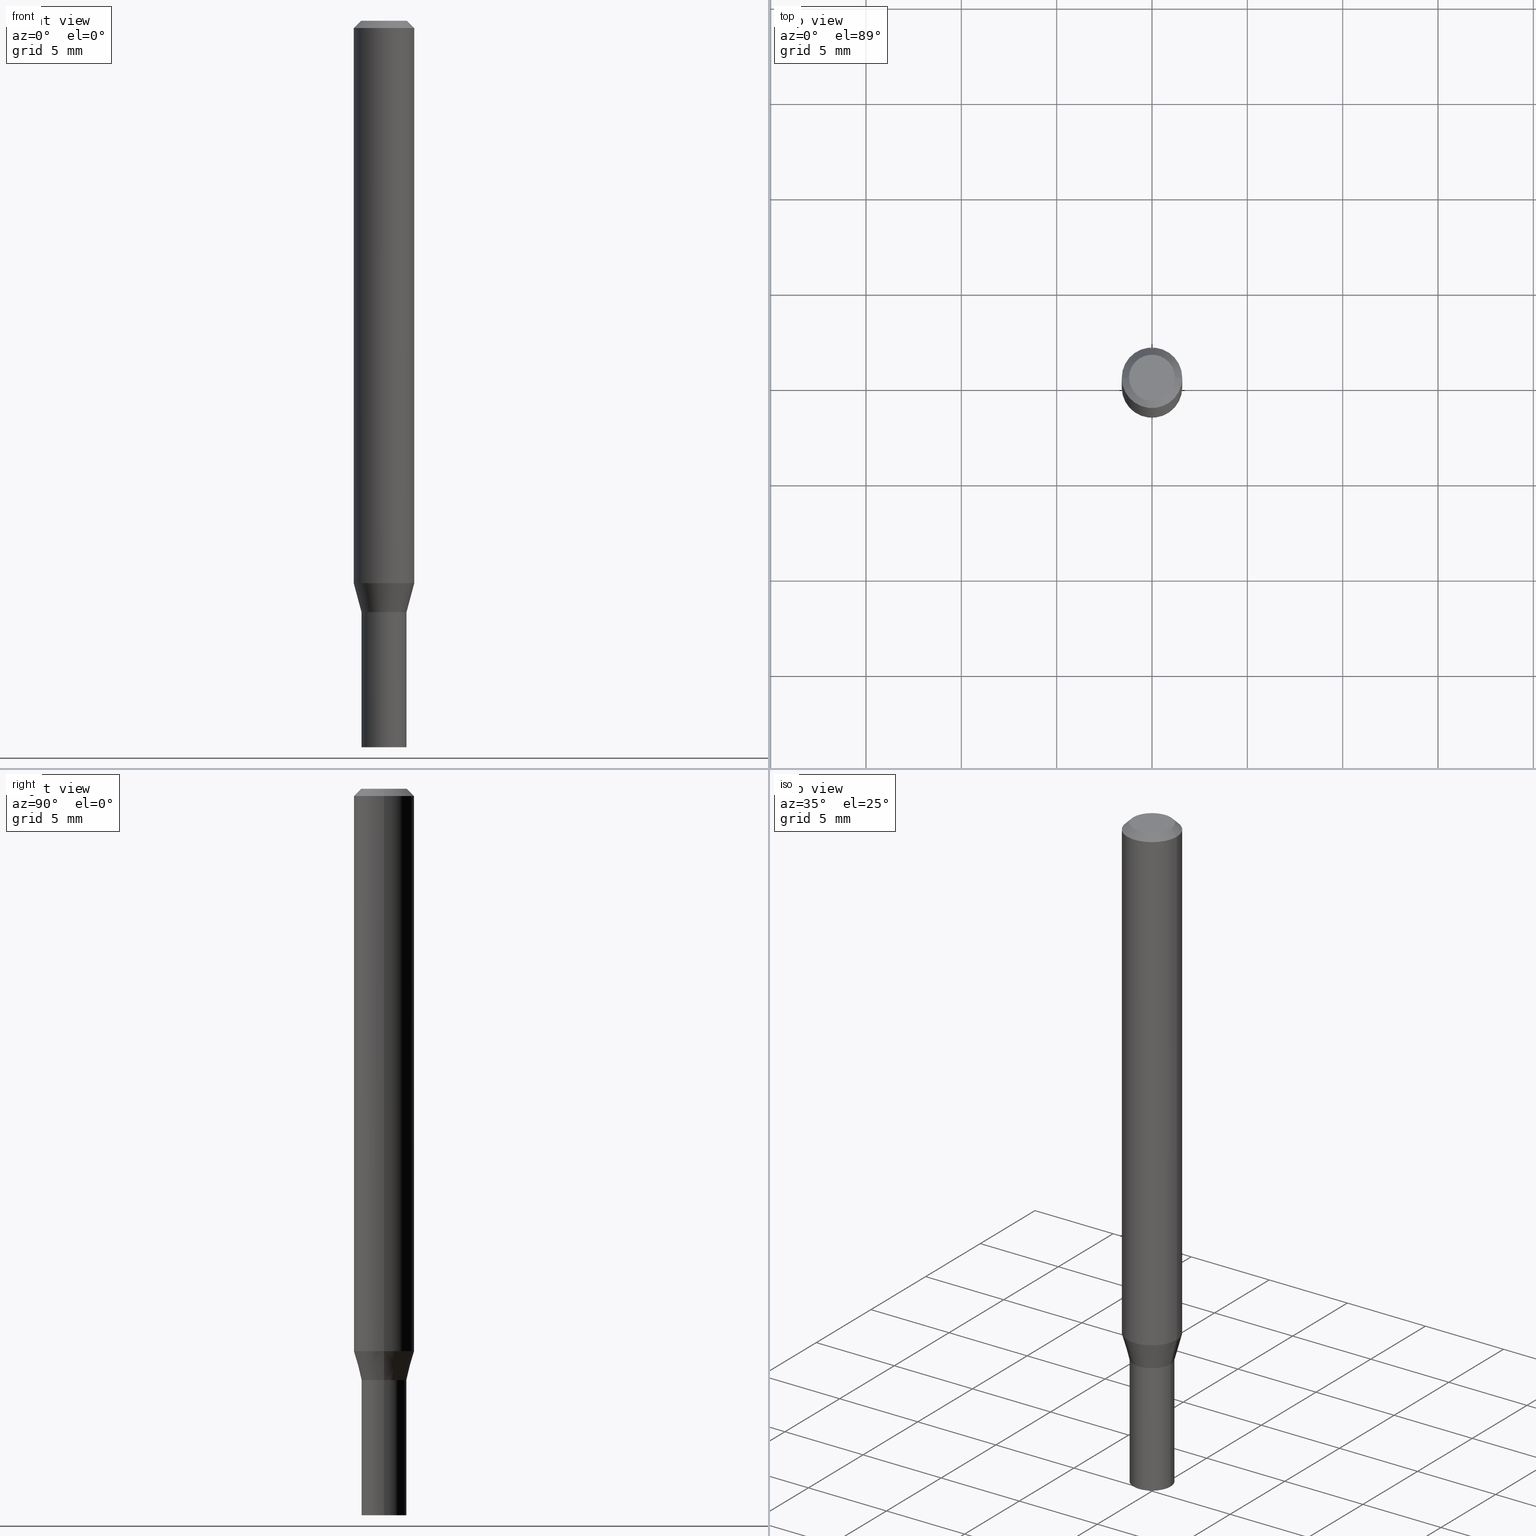
[diagram: canonical four-view strip — front | top / right | iso, engineering-drawing reading convention]
A machine part, canonical four-view strip (front | top / right | iso — engineering-drawing reading convention). The complete STEP part file that produces these views, byte-faithful:
ISO-10303-21;
HEADER;
FILE_DESCRIPTION (( 'STEP AP203' ),
    '1' );
FILE_NAME ('04175.STEP',
    '2024-03-14T17:11:52',
    ( '' ),
    ( '' ),
    'SwSTEP 2.0',
    'SolidWorks 2023',
    '' );
FILE_SCHEMA (( 'CONFIG_CONTROL_DESIGN' ));
ENDSEC;

DATA;
#1 = CARTESIAN_POINT ( 'NONE',  ( -0.04649999999999999967, -4.419757989367653263E-15, -1.221000000000000085 ) ) ;
#2 = CONICAL_SURFACE ( 'NONE', #271, 0.04599999999999999922, 0.7853981633974739252 ) ;
#3 = DIRECTION ( 'NONE',  ( 2.438088387897960049E-29, -3.491481338843145188E-15, -1.000000000000000000 ) ) ;
#4 = LINE ( 'NONE', #150, #80 ) ;
#5 = APPROVAL ( #427, 'UNSPECIFIED' ) ;
#6 = CARTESIAN_POINT ( 'NONE',  ( 0.04749999999999999362, -4.035134999187577144E-16, 8.673617379885194112E-17 ) ) ;
#7 = VECTOR ( 'NONE', #106, 39.37007874015748854 ) ;
#8 = LOCAL_TIME ( 13, 11, 52.00000000000000000, #355 ) ;
#9 = DIRECTION ( 'NONE',  ( 2.445468806185136597E-29, -3.491481338843145583E-15, -1.000000000000000000 ) ) ;
#10 = EDGE_CURVE ( 'NONE', #413, #155, #449, .T. ) ;
#11 = APPROVAL ( #358, 'UNSPECIFIED' ) ;
#12 =( NAMED_UNIT ( * ) SI_UNIT ( $, .STERADIAN. ) SOLID_ANGLE_UNIT ( ) );
#13 = VERTEX_POINT ( 'NONE', #205 ) ;
#14 = DIRECTION ( 'NONE',  ( 0.000000000000000000, 0.000000000000000000, 1.000000000000000000 ) ) ;
#15 = ORIENTED_EDGE ( 'NONE', *, *, #377, .F. ) ;
#16 = AXIS2_PLACEMENT_3D ( 'NONE', #451, #19, #422 ) ;
#17 = FACE_OUTER_BOUND ( 'NONE', #47, .T. ) ;
#18 = DIRECTION ( 'NONE',  ( -2.445468806185136597E-29, 3.491481338843145583E-15, 1.000000000000000000 ) ) ;
#19 = DIRECTION ( 'NONE',  ( -2.445468806185136597E-29, 3.491481338843145583E-15, 1.000000000000000000 ) ) ;
#20 = ORIENTED_EDGE ( 'NONE', *, *, #464, .T. ) ;
#21 = CYLINDRICAL_SURFACE ( 'NONE', #313, 0.06250000000000000000 ) ;
#22 = ORIENTED_EDGE ( 'NONE', *, *, #85, .T. ) ;
#23 = APPLICATION_CONTEXT ( 'configuration controlled 3d designs of mechanical parts and assemblies' ) ;
#24 = EDGE_LOOP ( 'NONE', ( #60, #62, #379, #93 ) ) ;
#25 = DATE_AND_TIME ( #352, #162 ) ;
#26 = DIRECTION ( 'NONE',  ( 1.000000000000000000, -6.982962677686269077E-15, 0.000000000000000000 ) ) ;
#27 = APPLICATION_PROTOCOL_DEFINITION ( 'international standard', 'config_control_design', 1994, #405 ) ;
#28 = FACE_OUTER_BOUND ( 'NONE', #274, .T. ) ;
#29 = AXIS2_PLACEMENT_3D ( 'NONE', #234, #78, #362 ) ;
#30 = SECURITY_CLASSIFICATION_LEVEL ( 'unclassified' ) ;
#31 = DIRECTION ( 'NONE',  ( 1.000000000000000000, -6.982962677686266711E-15, 4.876176775795935793E-29 ) ) ;
#32 = EDGE_CURVE ( 'NONE', #344, #452, #193, .T. ) ;
#33 = CALENDAR_DATE ( 2024, 14, 3 ) ;
#34 = CARTESIAN_POINT ( 'NONE',  ( 0.06250000000000000000, -4.811533449433679005E-16, -0.01499999999999999944 ) ) ;
#35 = FACE_OUTER_BOUND ( 'NONE', #192, .T. ) ;
#36 = PLANE ( 'NONE',  #37 ) ;
#37 = AXIS2_PLACEMENT_3D ( 'NONE', #295, #3, #187 ) ;
#38 =( GEOMETRIC_REPRESENTATION_CONTEXT ( 3 ) GLOBAL_UNCERTAINTY_ASSIGNED_CONTEXT ( ( #289 ) ) GLOBAL_UNIT_ASSIGNED_CONTEXT ( ( #418, #197, #12 ) ) REPRESENTATION_CONTEXT ( 'NONE', 'WORKASPACE' ) );
#39 = ORIENTED_EDGE ( 'NONE', *, *, #299, .F. ) ;
#40 = DIRECTION ( 'NONE',  ( -2.445468806185136597E-29, 3.491481338843145583E-15, 1.000000000000000000 ) ) ;
#41 = VERTEX_POINT ( 'NONE', #126 ) ;
#42 = DIRECTION ( 'NONE',  ( 1.000000000000000000, -6.982962677686267499E-15, 4.876176775795936353E-29 ) ) ;
#43 = ORIENTED_EDGE ( 'NONE', *, *, #331, .F. ) ;
#44 = CARTESIAN_POINT ( 'NONE',  ( -0.06250000000000000000, 4.440892098500626162E-16, -3.074334431409316114E-30 ) ) ;
#45 = AXIS2_PLACEMENT_3D ( 'NONE', #142, #75, #143 ) ;
#46 = VECTOR ( 'NONE', #309, 39.37007874015748854 ) ;
#47 = EDGE_LOOP ( 'NONE', ( #39, #387, #456, #265 ) ) ;
#48 = EDGE_CURVE ( 'NONE', #275, #341, #350, .T. ) ;
#49 = ORGANIZATION ( 'UNSPECIFIED', 'UNSPECIFIED', '' ) ;
#50 = EDGE_CURVE ( 'NONE', #155, #277, #338, .T. ) ;
#51 = FACE_OUTER_BOUND ( 'NONE', #84, .T. ) ;
#52 = ORIENTED_EDGE ( 'NONE', *, *, #437, .F. ) ;
#53 = CARTESIAN_POINT ( 'NONE',  ( -0.04650000000000007599, -3.771609837736297166E-15, -1.221000000000000085 ) ) ;
#54 = ORIENTED_EDGE ( 'NONE', *, *, #423, .T. ) ;
#55 = CIRCLE ( 'NONE', #304, 0.04649999999999999967 ) ;
#56 = DIRECTION ( 'NONE',  ( -1.000000000000000000, 6.982962677686266711E-15, 0.000000000000000000 ) ) ;
#57 = CC_DESIGN_PERSON_AND_ORGANIZATION_ASSIGNMENT ( #430, #327, ( #235 ) ) ;
#58 = ORIENTED_EDGE ( 'NONE', *, *, #214, .T. ) ;
#59 = DIRECTION ( 'NONE',  ( 1.000000000000000000, -6.982962677686269077E-15, 0.000000000000000000 ) ) ;
#60 = ORIENTED_EDGE ( 'NONE', *, *, #168, .T. ) ;
#61 = APPROVAL_DATE_TIME ( #325, #11 ) ;
#62 = ORIENTED_EDGE ( 'NONE', *, *, #294, .T. ) ;
#63 = EDGE_CURVE ( 'NONE', #424, #155, #287, .T. ) ;
#64 = CIRCLE ( 'NONE', #330, 0.04649999999999999967 ) ;
#65 = CC_DESIGN_APPROVAL ( #5, ( #324 ) ) ;
#66 = DATE_AND_TIME ( #105, #82 ) ;
#67 = CARTESIAN_POINT ( 'NONE',  ( 0.000000000000000000, 0.000000000000000000, 0.000000000000000000 ) ) ;
#68 = DIRECTION ( 'NONE',  ( 2.438088387897960049E-29, -3.491481338843145188E-15, -1.000000000000000000 ) ) ;
#69 = PERSON_AND_ORGANIZATION ( #167, #49 ) ;
#70 = DIRECTION ( 'NONE',  ( -2.445468806185136597E-29, 3.491481338843145583E-15, 1.000000000000000000 ) ) ;
#71 = CLOSED_SHELL ( 'NONE', ( #87, #318, #417, #298, #135, #249, #461, #339, #252, #221, #446, #236 ) ) ;
#72 = AXIS2_PLACEMENT_3D ( 'NONE', #297, #260, #329 ) ;
#73 = DATE_TIME_ROLE ( 'classification_date' ) ;
#74 = APPROVAL_PERSON_ORGANIZATION ( #389, #11, #288 ) ;
#75 = DIRECTION ( 'NONE',  ( -2.445468806185136597E-29, 3.491481338843145583E-15, 1.000000000000000000 ) ) ;
#76 = CC_DESIGN_DATE_AND_TIME_ASSIGNMENT ( #253, #73, ( #324 ) ) ;
#77 = DIRECTION ( 'NONE',  ( 0.2588190451025207395, 1.565188264969626109E-15, 0.9659258262890682012 ) ) ;
#78 = DIRECTION ( 'NONE',  ( -2.445468806185136597E-29, 3.491481338843145583E-15, 1.000000000000000000 ) ) ;
#79 = VERTEX_POINT ( 'NONE', #257 ) ;
#80 = VECTOR ( 'NONE', #442, 39.37007874015748854 ) ;
#81 = CARTESIAN_POINT ( 'NONE',  ( 0.04649999999999999967, -4.587806479239892817E-15, -1.221000000000000085 ) ) ;
#82 = LOCAL_TIME ( 13, 11, 52.00000000000000000, #317 ) ;
#83 = CARTESIAN_POINT ( 'NONE',  ( 3.576687321579069994E-29, -5.368277968210015545E-15, -1.500000000000000222 ) ) ;
#84 = EDGE_LOOP ( 'NONE', ( #136, #132, #374, #376 ) ) ;
#85 = EDGE_CURVE ( 'NONE', #229, #452, #354, .T. ) ;
#86 = DIRECTION ( 'NONE',  ( -2.445468806185136877E-29, 3.491481338843145188E-15, 1.000000000000000000 ) ) ;
#87 = ADVANCED_FACE ( 'NONE', ( #28 ), #290, .F. ) ;
#88 = CARTESIAN_POINT ( 'NONE',  ( 3.668203209277705088E-31, -5.237222008264718399E-17, -0.01499999999999999944 ) ) ;
#89 = CIRCLE ( 'NONE', #380, 0.06250000000000000000 ) ;
#90 = ADVANCED_BREP_SHAPE_REPRESENTATION ( '04175', ( #466, #316, #406 ), #38 ) ;
#91 = LINE ( 'NONE', #415, #46 ) ;
#92 = ORIENTED_EDGE ( 'NONE', *, *, #447, .F. ) ;
#93 = ORIENTED_EDGE ( 'NONE', *, *, #315, .F. ) ;
#94 = MECHANICAL_CONTEXT ( 'NONE', #23, 'mechanical' ) ;
#95 = ORIENTED_EDGE ( 'NONE', *, *, #299, .T. ) ;
#96 = VECTOR ( 'NONE', #351, 39.37007874015748143 ) ;
#97 = AXIS2_PLACEMENT_3D ( 'NONE', #123, #292, #42 ) ;
#98 = APPROVAL_PERSON_ORGANIZATION ( #211, #137, #114 ) ;
#99 = FACE_OUTER_BOUND ( 'NONE', #419, .T. ) ;
#100 = EDGE_LOOP ( 'NONE', ( #207, #225 ) ) ;
#101 = DIRECTION ( 'NONE',  ( 1.000000000000000000, -6.982962677686269866E-15, 0.000000000000000000 ) ) ;
#102 = EDGE_CURVE ( 'NONE', #277, #155, #107, .T. ) ;
#103 = ORIENTED_EDGE ( 'NONE', *, *, #50, .F. ) ;
#104 = PRODUCT_DEFINITION ( 'UNKNOWN', '', #235, #431 ) ;
#105 = CALENDAR_DATE ( 2024, 14, 3 ) ;
#106 = DIRECTION ( 'NONE',  ( 0.7071067811865454633, -7.319954787623246579E-15, -0.7071067811865493491 ) ) ;
#107 = CIRCLE ( 'NONE', #226, 0.04650000000000006212 ) ;
#108 = AXIS2_PLACEMENT_3D ( 'NONE', #169, #206, #163 ) ;
#109 = CC_DESIGN_APPROVAL ( #11, ( #104 ) ) ;
#110 = COORDINATED_UNIVERSAL_TIME_OFFSET ( 5, 0, .BEHIND. ) ;
#111 = FACE_OUTER_BOUND ( 'NONE', #450, .T. ) ;
#112 = FACE_OUTER_BOUND ( 'NONE', #444, .T. ) ;
#113 = CARTESIAN_POINT ( 'NONE',  ( 2.985917412352052273E-29, -4.263098714727481320E-15, -1.221000000000000085 ) ) ;
#114 = APPROVAL_ROLE ( '' ) ;
#115 = DIRECTION ( 'NONE',  ( -2.438088387897960049E-29, 3.491481338843145188E-15, 1.000000000000000000 ) ) ;
#116 = DIRECTION ( 'NONE',  ( -2.445468806185136597E-29, 3.491481338843145583E-15, 1.000000000000000000 ) ) ;
#117 = DIRECTION ( 'NONE',  ( -2.445468806185136877E-29, 3.491481338843145188E-15, 1.000000000000000000 ) ) ;
#118 = ORIENTED_EDGE ( 'NONE', *, *, #63, .T. ) ;
#119 = CIRCLE ( 'NONE', #255, 0.04650000000000007599 ) ;
#120 = FACE_OUTER_BOUND ( 'NONE', #161, .T. ) ;
#121 = CARTESIAN_POINT ( 'NONE',  ( 2.985917412352052273E-29, -4.263098714727481320E-15, -1.221000000000000085 ) ) ;
#122 = ORIENTED_EDGE ( 'NONE', *, *, #10, .F. ) ;
#123 = CARTESIAN_POINT ( 'NONE',  ( 0.000000000000000000, 0.000000000000000000, 0.000000000000000000 ) ) ;
#124 = DIRECTION ( 'NONE',  ( -2.445468806185136597E-29, 3.491481338843145583E-15, 1.000000000000000000 ) ) ;
#125 = CONICAL_SURFACE ( 'NONE', #363, 0.06250000000000000000, 0.7853981633974456145 ) ;
#126 = CARTESIAN_POINT ( 'NONE',  ( 0.04599999999999999922, -4.584314997901049810E-15, -1.221000000000000085 ) ) ;
#127 = DIRECTION ( 'NONE',  ( 1.000000000000000000, -6.982962677686269866E-15, 0.000000000000000000 ) ) ;
#128 = ORIENTED_EDGE ( 'NONE', *, *, #377, .T. ) ;
#129 = CARTESIAN_POINT ( 'NONE',  ( 0.000000000000000000, 0.000000000000000000, 0.000000000000000000 ) ) ;
#130 = ORIENTED_EDGE ( 'NONE', *, *, #270, .T. ) ;
#131 = DIRECTION ( 'NONE',  ( 2.445468806185136597E-29, -3.491481338843145583E-15, -1.000000000000000000 ) ) ;
#132 = ORIENTED_EDGE ( 'NONE', *, *, #331, .T. ) ;
#133 = CIRCLE ( 'NONE', #16, 0.04599999999999999922 ) ;
#134 =( LENGTH_UNIT ( ) NAMED_UNIT ( * ) SI_UNIT ( $, .METRE. ) );
#135 = ADVANCED_FACE ( 'NONE', ( #111 ), #403, .T. ) ;
#136 = ORIENTED_EDGE ( 'NONE', *, *, #222, .T. ) ;
#137 = APPROVAL ( #174, 'UNSPECIFIED' ) ;
#138 = CARTESIAN_POINT ( 'NONE',  ( 3.668203209277705088E-31, -5.237222008264718399E-17, -0.01499999999999999944 ) ) ;
#139 = COORDINATED_UNIVERSAL_TIME_OFFSET ( 5, 0, .BEHIND. ) ;
#140 = DIRECTION ( 'NONE',  ( 1.000000000000000000, -6.982962677686266711E-15, 0.000000000000000000 ) ) ;
#141 = AXIS2_PLACEMENT_3D ( 'NONE', #113, #397, #433 ) ;
#142 = CARTESIAN_POINT ( 'NONE',  ( 2.984694677948959472E-29, -4.261352974058059816E-15, -1.220500000000000140 ) ) ;
#143 = DIRECTION ( 'NONE',  ( 1.000000000000000000, -6.982962677686260400E-15, 0.000000000000000000 ) ) ;
#144 = DIRECTION ( 'NONE',  ( 1.000000000000000000, -6.982962677686267499E-15, 4.876176775795936353E-29 ) ) ;
#145 = VECTOR ( 'NONE', #148, 39.37007874015748143 ) ;
#146 = EDGE_CURVE ( 'NONE', #301, #13, #283, .T. ) ;
#147 = LOCAL_TIME ( 13, 11, 52.00000000000000000, #110 ) ;
#148 = DIRECTION ( 'NONE',  ( -2.445468806185136877E-29, 3.491481338843145188E-15, 1.000000000000000000 ) ) ;
#149 = LINE ( 'NONE', #189, #194 ) ;
#150 = CARTESIAN_POINT ( 'NONE',  ( -0.04650000000000007599, -3.932696342599034046E-15, -1.221000000000000085 ) ) ;
#151 = ORIENTED_EDGE ( 'NONE', *, *, #222, .F. ) ;
#152 = AXIS2_PLACEMENT_3D ( 'NONE', #462, #115, #182 ) ;
#153 = CARTESIAN_POINT ( 'NONE',  ( -0.04749999999999999362, 3.578768372314211985E-16, 8.673617379884694910E-17 ) ) ;
#154 = LOCAL_TIME ( 13, 11, 52.00000000000000000, #172 ) ;
#155 = VERTEX_POINT ( 'NONE', #359 ) ;
#156 = PRODUCT_DEFINITION_SHAPE ( 'NONE', 'NONE',  #104 ) ;
#157 = CARTESIAN_POINT ( 'NONE',  ( -0.06250000000000000000, -3.610523332873560286E-15, -1.161287187078898331 ) ) ;
#158 = DIRECTION ( 'NONE',  ( 1.000000000000000000, -6.982962677686260400E-15, 0.000000000000000000 ) ) ;
#159 = EDGE_CURVE ( 'NONE', #273, #301, #438, .T. ) ;
#160 = CIRCLE ( 'NONE', #29, 0.04650000000000007599 ) ;
#161 = EDGE_LOOP ( 'NONE', ( #188, #420 ) ) ;
#162 = LOCAL_TIME ( 13, 11, 52.00000000000000000, #139 ) ;
#163 = DIRECTION ( 'NONE',  ( 1.000000000000000000, -6.982962677686266711E-15, 0.000000000000000000 ) ) ;
#164 = DIRECTION ( 'NONE',  ( -2.445468806185136597E-29, 3.491481338843145583E-15, 1.000000000000000000 ) ) ;
#165 = CARTESIAN_POINT ( 'NONE',  ( 0.000000000000000000, 0.000000000000000000, 0.000000000000000000 ) ) ;
#166 = ORIENTED_EDGE ( 'NONE', *, *, #10, .T. ) ;
#167 = PERSON ( 'UNSPECIFIED', 'UNSPECIFIED', 'UNSPECIFIED', ('UNSPECIFIED'), ('UNSPECIFIED'), ('UNSPECIFIED') ) ;
#168 = EDGE_CURVE ( 'NONE', #196, #79, #248, .T. ) ;
#169 = CARTESIAN_POINT ( 'NONE',  ( 3.668203209277705088E-31, -5.237222008264718399E-17, -0.01499999999999999944 ) ) ;
#170 = ORIENTED_EDGE ( 'NONE', *, *, #437, .T. ) ;
#171 = AXIS2_PLACEMENT_3D ( 'NONE', #373, #116, #231 ) ;
#172 = COORDINATED_UNIVERSAL_TIME_OFFSET ( 5, 0, .BEHIND. ) ;
#173 = ORIENTED_EDGE ( 'NONE', *, *, #447, .T. ) ;
#174 = APPROVAL_STATUS ( 'not_yet_approved' ) ;
#175 = FACE_OUTER_BOUND ( 'NONE', #242, .T. ) ;
#176 = APPROVAL_DATE_TIME ( #219, #5 ) ;
#177 = CARTESIAN_POINT ( 'NONE',  ( 0.04599999999999999922, -4.584314997901049810E-15, -1.221000000000000085 ) ) ;
#178 = CLOSED_SHELL ( 'NONE', ( #237, #385, #348, #361 ) ) ;
#179 = AXIS2_PLACEMENT_3D ( 'NONE', #305, #245, #127 ) ;
#180 = DIRECTION ( 'NONE',  ( 1.000000000000000000, -6.982962677686260400E-15, 0.000000000000000000 ) ) ;
#181 = CALENDAR_DATE ( 2024, 14, 3 ) ;
#182 = DIRECTION ( 'NONE',  ( 1.000000000000000000, -6.982962677686265922E-15, 4.876176775795935793E-29 ) ) ;
#183 = CC_DESIGN_PERSON_AND_ORGANIZATION_ASSIGNMENT ( #69, #392, ( #104 ) ) ;
#184 = CC_DESIGN_PERSON_AND_ORGANIZATION_ASSIGNMENT ( #204, #345, ( #322 ) ) ;
#185 = DIRECTION ( 'NONE',  ( -2.445468806185136597E-29, 3.491481338843145583E-15, 1.000000000000000000 ) ) ;
#186 = CIRCLE ( 'NONE', #72, 0.04749999999999999362 ) ;
#187 = DIRECTION ( 'NONE',  ( -1.000000000000000000, 6.982962677686265922E-15, -4.876176775795935793E-29 ) ) ;
#188 = ORIENTED_EDGE ( 'NONE', *, *, #168, .F. ) ;
#189 = CARTESIAN_POINT ( 'NONE',  ( 0.04650000000000006906, -3.247077645124118911E-16, 2.267422200745113479E-30 ) ) ;
#190 = ORIENTED_EDGE ( 'NONE', *, *, #85, .F. ) ;
#191 = CARTESIAN_POINT ( 'NONE',  ( 0.06250000000000000000, -4.888073874380388472E-16, -0.01499999999999999944 ) ) ;
#192 = EDGE_LOOP ( 'NONE', ( #244, #209, #22, #307 ) ) ;
#193 = CIRCLE ( 'NONE', #296, 0.06250000000000000000 ) ;
#194 = VECTOR ( 'NONE', #334, 39.37007874015748143 ) ;
#195 = LINE ( 'NONE', #441, #343 ) ;
#196 = VERTEX_POINT ( 'NONE', #428 ) ;
#197 =( NAMED_UNIT ( * ) PLANE_ANGLE_UNIT ( ) SI_UNIT ( $, .RADIAN. ) );
#198 = DIRECTION ( 'NONE',  ( 1.000000000000000000, 0.000000000000000000, 0.000000000000000000 ) ) ;
#199 = CARTESIAN_POINT ( 'NONE',  ( -0.04599999999999999922, -3.936249056277835733E-15, -1.221000000000000085 ) ) ;
#200 = CARTESIAN_POINT ( 'NONE',  ( 0.06250000000000000000, -4.491047710079014572E-15, -1.161287187078898331 ) ) ;
#201 = CIRCLE ( 'NONE', #171, 0.04749999999999999362 ) ;
#202 = APPROVAL_PERSON_ORGANIZATION ( #216, #5, #434 ) ;
#203 = ORIENTED_EDGE ( 'NONE', *, *, #294, .F. ) ;
#204 = PERSON_AND_ORGANIZATION ( #167, #49 ) ;
#205 = CARTESIAN_POINT ( 'NONE',  ( -0.06250000000000000000, -1.609403171553072375E-15, -0.01499999999999999944 ) ) ;
#206 = DIRECTION ( 'NONE',  ( -2.445468806185136597E-29, 3.491481338843145583E-15, 1.000000000000000000 ) ) ;
#207 = ORIENTED_EDGE ( 'NONE', *, *, #337, .T. ) ;
#208 = CC_DESIGN_DATE_AND_TIME_ASSIGNMENT ( #66, #458, ( #104 ) ) ;
#209 = ORIENTED_EDGE ( 'NONE', *, *, #349, .T. ) ;
#210 = VECTOR ( 'NONE', #117, 39.37007874015748143 ) ;
#211 = PERSON_AND_ORGANIZATION ( #167, #49 ) ;
#212 = CARTESIAN_POINT ( 'NONE',  ( 2.985917412352052273E-29, -4.263098714727481320E-15, -1.221000000000000085 ) ) ;
#213 = PERSON_AND_ORGANIZATION ( #167, #49 ) ;
#214 = EDGE_CURVE ( 'NONE', #41, #277, #247, .T. ) ;
#215 = DIRECTION ( 'NONE',  ( -1.000000000000000000, 6.982962677686265922E-15, -4.876176775795935793E-29 ) ) ;
#216 = PERSON_AND_ORGANIZATION ( #167, #49 ) ;
#217 = PLANE ( 'NONE',  #152 ) ;
#218 = AXIS2_PLACEMENT_3D ( 'NONE', #272, #276, #101 ) ;
#219 = DATE_AND_TIME ( #181, #8 ) ;
#220 = CARTESIAN_POINT ( 'NONE',  ( 2.984694677948959472E-29, -4.261352974058059816E-15, -1.220500000000000140 ) ) ;
#221 = ADVANCED_FACE ( 'NONE', ( #360 ), #217, .F. ) ;
#222 = EDGE_CURVE ( 'NONE', #452, #344, #89, .T. ) ;
#223 = CARTESIAN_POINT ( 'NONE',  ( 0.000000000000000000, 0.000000000000000000, 0.000000000000000000 ) ) ;
#224 = LINE ( 'NONE', #443, #145 ) ;
#225 = ORIENTED_EDGE ( 'NONE', *, *, #48, .T. ) ;
#226 = AXIS2_PLACEMENT_3D ( 'NONE', #220, #395, #180 ) ;
#227 = CIRCLE ( 'NONE', #218, 0.04599999999999999922 ) ;
#228 = FACE_OUTER_BOUND ( 'NONE', #100, .T. ) ;
#229 = VERTEX_POINT ( 'NONE', #251 ) ;
#230 = DIRECTION ( 'NONE',  ( -2.438088387897960049E-29, 3.491481338843145188E-15, 1.000000000000000000 ) ) ;
#231 = DIRECTION ( 'NONE',  ( 1.000000000000000000, -6.982962677686267499E-15, 4.884662768193073002E-29 ) ) ;
#232 = ORIENTED_EDGE ( 'NONE', *, *, #268, .F. ) ;
#233 = CONICAL_SURFACE ( 'NONE', #179, 0.04599999999999999922, 0.7853981633974739252 ) ;
#234 = CARTESIAN_POINT ( 'NONE',  ( 2.985917412352052273E-29, -4.263098714727481320E-15, -1.221000000000000085 ) ) ;
#235 = PRODUCT_DEFINITION_FORMATION_WITH_SPECIFIED_SOURCE ( 'ANY', '', #322, .NOT_KNOWN. ) ;
#236 = ADVANCED_FACE ( 'NONE', ( #112 ), #250, .F. ) ;
#237 = ADVANCED_FACE ( 'NONE', ( #463 ), #391, .T. ) ;
#238 = DIRECTION ( 'NONE',  ( -2.445468806185136597E-29, 3.491481338843145583E-15, 1.000000000000000000 ) ) ;
#239 = ORIENTED_EDGE ( 'NONE', *, *, #214, .F. ) ;
#240 = ORIENTED_EDGE ( 'NONE', *, *, #349, .F. ) ;
#241 = VECTOR ( 'NONE', #401, 39.37007874015748143 ) ;
#242 = EDGE_LOOP ( 'NONE', ( #370, #95 ) ) ;
#243 = DIRECTION ( 'NONE',  ( 1.000000000000000000, -6.982962677686266711E-15, 4.876176775795935793E-29 ) ) ;
#244 = ORIENTED_EDGE ( 'NONE', *, *, #383, .F. ) ;
#245 = DIRECTION ( 'NONE',  ( -2.445468806185136597E-29, 3.491481338843145583E-15, 1.000000000000000000 ) ) ;
#246 = EDGE_LOOP ( 'NONE', ( #170, #166, #261, #239 ) ) ;
#247 = LINE ( 'NONE', #177, #291 ) ;
#248 = CIRCLE ( 'NONE', #372, 0.04649999999999999967 ) ;
#249 = ADVANCED_FACE ( 'NONE', ( #35 ), #414, .T. ) ;
#250 = CYLINDRICAL_SURFACE ( 'NONE', #421, 0.04650000000000006906 ) ;
#251 = CARTESIAN_POINT ( 'NONE',  ( 0.04650000000000007599, -4.587806479239893606E-15, -1.221000000000000085 ) ) ;
#252 = ADVANCED_FACE ( 'NONE', ( #175 ), #284, .F. ) ;
#253 = DATE_AND_TIME ( #33, #147 ) ;
#254 = CARTESIAN_POINT ( 'NONE',  ( -0.04650000000000006906, 3.304023721284470771E-16, -2.287304816968534683E-30 ) ) ;
#255 = AXIS2_PLACEMENT_3D ( 'NONE', #455, #238, #59 ) ;
#256 = SHAPE_DEFINITION_REPRESENTATION ( #156, #90 ) ;
#257 = CARTESIAN_POINT ( 'NONE',  ( -0.04649999999999999967, -4.419757989367653263E-15, -1.500000000000000222 ) ) ;
#258 = CARTESIAN_POINT ( 'NONE',  ( 0.000000000000000000, 0.000000000000000000, 0.000000000000000000 ) ) ;
#259 = ORIENTED_EDGE ( 'NONE', *, *, #63, .F. ) ;
#260 = DIRECTION ( 'NONE',  ( -2.445468806185136597E-29, 3.491481338843145583E-15, 1.000000000000000000 ) ) ;
#261 = ORIENTED_EDGE ( 'NONE', *, *, #102, .F. ) ;
#262 = AXIS2_PLACEMENT_3D ( 'NONE', #88, #9, #367 ) ;
#263 = CC_DESIGN_APPROVAL ( #137, ( #235 ) ) ;
#264 = PLANE ( 'NONE',  #429 ) ;
#265 = ORIENTED_EDGE ( 'NONE', *, *, #464, .F. ) ;
#266 = LINE ( 'NONE', #44, #241 ) ;
#267 = ORIENTED_EDGE ( 'NONE', *, *, #48, .F. ) ;
#268 = EDGE_CURVE ( 'NONE', #279, #273, #201, .T. ) ;
#269 = LINE ( 'NONE', #335, #210 ) ;
#270 = EDGE_CURVE ( 'NONE', #452, #301, #195, .T. ) ;
#271 = AXIS2_PLACEMENT_3D ( 'NONE', #121, #412, #369 ) ;
#272 = CARTESIAN_POINT ( 'NONE',  ( 2.985917412352052273E-29, -4.263098714727481320E-15, -1.221000000000000085 ) ) ;
#273 = VERTEX_POINT ( 'NONE', #6 ) ;
#274 = EDGE_LOOP ( 'NONE', ( #240, #118, #411, #15 ) ) ;
#275 = VERTEX_POINT ( 'NONE', #1 ) ;
#276 = DIRECTION ( 'NONE',  ( -2.445468806185136597E-29, 3.491481338843145583E-15, 1.000000000000000000 ) ) ;
#277 = VERTEX_POINT ( 'NONE', #293 ) ;
#278 = CARTESIAN_POINT ( 'NONE',  ( -0.04599999999999999922, -3.933599829103724532E-15, -1.221000000000000085 ) ) ;
#279 = VERTEX_POINT ( 'NONE', #153 ) ;
#280 = PERSON_AND_ORGANIZATION_ROLE ( 'design_supplier' ) ;
#281 = CARTESIAN_POINT ( 'NONE',  ( 3.668203209277704895E-29, -5.237222008264718177E-15, -1.500000000000000222 ) ) ;
#282 = PERSON_AND_ORGANIZATION_ROLE ( 'classification_officer' ) ;
#283 = CIRCLE ( 'NONE', #398, 0.06250000000000000000 ) ;
#284 = PLANE ( 'NONE',  #285 ) ;
#285 = AXIS2_PLACEMENT_3D ( 'NONE', #393, #68, #215 ) ;
#286 = DIRECTION ( 'NONE',  ( -2.445468806185136877E-29, 3.491481338843145188E-15, 1.000000000000000000 ) ) ;
#287 = LINE ( 'NONE', #254, #311 ) ;
#288 = APPROVAL_ROLE ( '' ) ;
#289 = UNCERTAINTY_MEASURE_WITH_UNIT (LENGTH_MEASURE( 1.000000000000000082E-05 ), #418, 'distance_accuracy_value', 'NONE');
#290 = CYLINDRICAL_SURFACE ( 'NONE', #303, 0.04650000000000006906 ) ;
#291 = VECTOR ( 'NONE', #457, 39.37007874015748143 ) ;
#292 = DIRECTION ( 'NONE',  ( -2.445468806185136597E-29, 3.491481338843145583E-15, 1.000000000000000000 ) ) ;
#293 = CARTESIAN_POINT ( 'NONE',  ( 0.04650000000000006212, -4.586060738570472102E-15, -1.220500000000000140 ) ) ;
#294 = EDGE_CURVE ( 'NONE', #79, #275, #269, .T. ) ;
#295 = CARTESIAN_POINT ( 'NONE',  ( 3.247077645124412269E-16, 0.04649999999999573919, -1.221000000000000307 ) ) ;
#296 = AXIS2_PLACEMENT_3D ( 'NONE', #310, #18, #426 ) ;
#297 = CARTESIAN_POINT ( 'NONE',  ( -2.121106073929386760E-45, 3.028377322213383622E-31, 8.673617379884936499E-17 ) ) ;
#298 = ADVANCED_FACE ( 'NONE', ( #51 ), #410, .T. ) ;
#299 = EDGE_CURVE ( 'NONE', #273, #279, #186, .T. ) ;
#300 = FACE_OUTER_BOUND ( 'NONE', #416, .T. ) ;
#301 = VERTEX_POINT ( 'NONE', #191 ) ;
#302 = VECTOR ( 'NONE', #77, 39.37007874015748854 ) ;
#303 = AXIS2_PLACEMENT_3D ( 'NONE', #223, #70, #435 ) ;
#304 = AXIS2_PLACEMENT_3D ( 'NONE', #312, #124, #158 ) ;
#305 = CARTESIAN_POINT ( 'NONE',  ( 2.985917412352052273E-29, -4.263098714727481320E-15, -1.221000000000000085 ) ) ;
#306 = CC_DESIGN_SECURITY_CLASSIFICATION ( #324, ( #235 ) ) ;
#307 = ORIENTED_EDGE ( 'NONE', *, *, #32, .F. ) ;
#308 = DIRECTION ( 'NONE',  ( 1.000000000000000000, -6.982962677686260400E-15, 0.000000000000000000 ) ) ;
#309 = DIRECTION ( 'NONE',  ( -0.7071067811865454633, 2.468850131082235761E-15, -0.7071067811865493491 ) ) ;
#310 = CARTESIAN_POINT ( 'NONE',  ( 2.839891591023928922E-29, -4.054612542723622902E-15, -1.161287187078898331 ) ) ;
#311 = VECTOR ( 'NONE', #286, 39.37007874015748143 ) ;
#312 = CARTESIAN_POINT ( 'NONE',  ( 3.668203209277704895E-29, -5.237222008264718177E-15, -1.500000000000000222 ) ) ;
#313 = AXIS2_PLACEMENT_3D ( 'NONE', #165, #448, #243 ) ;
#314 = ORIENTED_EDGE ( 'NONE', *, *, #159, .F. ) ;
#315 = EDGE_CURVE ( 'NONE', #196, #341, #224, .T. ) ;
#316 = MANIFOLD_SOLID_BREP ( 'Body-Move/Copy2[2]', #71 ) ;
#317 = COORDINATED_UNIVERSAL_TIME_OFFSET ( 5, 0, .BEHIND. ) ;
#318 = ADVANCED_FACE ( 'NONE', ( #445 ), #2, .T. ) ;
#319 = ORIENTED_EDGE ( 'NONE', *, *, #400, .T. ) ;
#320 = APPROVAL_DATE_TIME ( #25, #137 ) ;
#321 = CARTESIAN_POINT ( 'NONE',  ( 2.839891591023928922E-29, -4.054612542723622902E-15, -1.161287187078898331 ) ) ;
#322 = PRODUCT ( '04175', '04175', '', ( #94 ) ) ;
#323 = DIRECTION ( 'NONE',  ( -2.445468806185136597E-29, 3.491481338843145583E-15, 1.000000000000000000 ) ) ;
#324 = SECURITY_CLASSIFICATION ( '', '', #30 ) ;
#325 = DATE_AND_TIME ( #394, #154 ) ;
#326 = CARTESIAN_POINT ( 'NONE',  ( 0.04650000000000007599, -4.587806479239893606E-15, -1.221000000000000085 ) ) ;
#327 = PERSON_AND_ORGANIZATION_ROLE ( 'creator' ) ;
#328 = DIRECTION ( 'NONE',  ( 1.000000000000000000, -6.982962677686270655E-15, 0.000000000000000000 ) ) ;
#329 = DIRECTION ( 'NONE',  ( 1.000000000000000000, -6.982962677686267499E-15, 4.884662768193073002E-29 ) ) ;
#330 = AXIS2_PLACEMENT_3D ( 'NONE', #365, #402, #340 ) ;
#331 = EDGE_CURVE ( 'NONE', #344, #13, #266, .T. ) ;
#332 = DIRECTION ( 'NONE',  ( 1.000000000000000000, -6.982962677686266711E-15, 4.876176775795935793E-29 ) ) ;
#333 = ORIENTED_EDGE ( 'NONE', *, *, #423, .F. ) ;
#334 = DIRECTION ( 'NONE',  ( -2.445468806185136877E-29, 3.491481338843145188E-15, 1.000000000000000000 ) ) ;
#335 = CARTESIAN_POINT ( 'NONE',  ( -0.04649999999999999967, 3.304023721284465841E-16, -2.287304816968531530E-30 ) ) ;
#336 = ORIENTED_EDGE ( 'NONE', *, *, #32, .T. ) ;
#337 = EDGE_CURVE ( 'NONE', #341, #275, #64, .T. ) ;
#338 = CIRCLE ( 'NONE', #45, 0.04650000000000006212 ) ;
#339 = ADVANCED_FACE ( 'NONE', ( #407 ), #390, .T. ) ;
#340 = DIRECTION ( 'NONE',  ( 1.000000000000000000, -6.982962677686260400E-15, 0.000000000000000000 ) ) ;
#341 = VERTEX_POINT ( 'NONE', #81 ) ;
#342 = CARTESIAN_POINT ( 'NONE',  ( 2.985917412352052273E-29, -4.263098714727481320E-15, -1.221000000000000085 ) ) ;
#343 = VECTOR ( 'NONE', #86, 39.37007874015748143 ) ;
#344 = VERTEX_POINT ( 'NONE', #157 ) ;
#345 = PERSON_AND_ORGANIZATION_ROLE ( 'design_owner' ) ;
#346 = EDGE_LOOP ( 'NONE', ( #314, #232, #20, #54 ) ) ;
#347 = ORIENTED_EDGE ( 'NONE', *, *, #315, .T. ) ;
#348 = ADVANCED_FACE ( 'NONE', ( #300 ), #440, .T. ) ;
#349 = EDGE_CURVE ( 'NONE', #424, #229, #160, .T. ) ;
#350 = CIRCLE ( 'NONE', #388, 0.04649999999999999967 ) ;
#351 = DIRECTION ( 'NONE',  ( -0.7071067811865656694, 7.493145998870420424E-15, 0.7071067811865294761 ) ) ;
#352 = CALENDAR_DATE ( 2024, 14, 3 ) ;
#353 = DIRECTION ( 'NONE',  ( -2.445468806185136597E-29, 3.491481338843145583E-15, 1.000000000000000000 ) ) ;
#354 = LINE ( 'NONE', #326, #302 ) ;
#355 = COORDINATED_UNIVERSAL_TIME_OFFSET ( 5, 0, .BEHIND. ) ;
#356 = DIRECTION ( 'NONE',  ( -2.445468806185136597E-29, 3.491481338843145583E-15, 1.000000000000000000 ) ) ;
#357 = CIRCLE ( 'NONE', #108, 0.06250000000000000000 ) ;
#358 = APPROVAL_STATUS ( 'not_yet_approved' ) ;
#359 = CARTESIAN_POINT ( 'NONE',  ( -0.04650000000000006212, -3.930950601929612542E-15, -1.220500000000000140 ) ) ;
#360 = FACE_OUTER_BOUND ( 'NONE', #381, .T. ) ;
#361 = ADVANCED_FACE ( 'NONE', ( #228 ), #36, .F. ) ;
#362 = DIRECTION ( 'NONE',  ( 1.000000000000000000, -6.982962677686269077E-15, 0.000000000000000000 ) ) ;
#363 = AXIS2_PLACEMENT_3D ( 'NONE', #425, #131, #56 ) ;
#364 = AXIS2_PLACEMENT_3D ( 'NONE', #258, #40, #332 ) ;
#365 = CARTESIAN_POINT ( 'NONE',  ( 2.985917412352052273E-29, -4.263098714727481320E-15, -1.221000000000000085 ) ) ;
#366 = ORIENTED_EDGE ( 'NONE', *, *, #383, .T. ) ;
#367 = DIRECTION ( 'NONE',  ( -1.000000000000000000, 6.982962677686266711E-15, 0.000000000000000000 ) ) ;
#368 = ORIENTED_EDGE ( 'NONE', *, *, #436, .F. ) ;
#369 = DIRECTION ( 'NONE',  ( 1.000000000000000000, -6.982962677686269866E-15, 0.000000000000000000 ) ) ;
#370 = ORIENTED_EDGE ( 'NONE', *, *, #268, .T. ) ;
#371 = PRODUCT_RELATED_PRODUCT_CATEGORY ( 'detail', '', ( #322 ) ) ;
#372 = AXIS2_PLACEMENT_3D ( 'NONE', #281, #432, #460 ) ;
#373 = CARTESIAN_POINT ( 'NONE',  ( -2.121106073929386760E-45, 3.028377322213383622E-31, 8.673617379884936499E-17 ) ) ;
#374 = ORIENTED_EDGE ( 'NONE', *, *, #146, .F. ) ;
#375 = FACE_OUTER_BOUND ( 'NONE', #384, .T. ) ;
#376 = ORIENTED_EDGE ( 'NONE', *, *, #270, .F. ) ;
#377 = EDGE_CURVE ( 'NONE', #229, #277, #149, .T. ) ;
#378 = APPLICATION_PROTOCOL_DEFINITION ( 'international standard', 'config_control_design', 1994, #23 ) ;
#379 = ORIENTED_EDGE ( 'NONE', *, *, #337, .F. ) ;
#380 = AXIS2_PLACEMENT_3D ( 'NONE', #321, #185, #328 ) ;
#381 = EDGE_LOOP ( 'NONE', ( #52, #92 ) ) ;
#382 = DIRECTION ( 'NONE',  ( 1.000000000000000000, -6.982962677686265922E-15, 4.876176775795935793E-29 ) ) ;
#383 = EDGE_CURVE ( 'NONE', #424, #344, #4, .T. ) ;
#384 = EDGE_LOOP ( 'NONE', ( #122, #173, #58, #103 ) ) ;
#385 = ADVANCED_FACE ( 'NONE', ( #120 ), #264, .F. ) ;
#386 = LENGTH_MEASURE_WITH_UNIT ( LENGTH_MEASURE( 0.02539999999999999897 ), #134 );
#387 = ORIENTED_EDGE ( 'NONE', *, *, #159, .T. ) ;
#388 = AXIS2_PLACEMENT_3D ( 'NONE', #342, #164, #308 ) ;
#389 = PERSON_AND_ORGANIZATION ( #167, #49 ) ;
#390 = CONICAL_SURFACE ( 'NONE', #262, 0.06250000000000000000, 0.7853981633974456145 ) ;
#391 = CYLINDRICAL_SURFACE ( 'NONE', #453, 0.04649999999999999967 ) ;
#392 = PERSON_AND_ORGANIZATION_ROLE ( 'creator' ) ;
#393 = CARTESIAN_POINT ( 'NONE',  ( 3.316907271900976096E-16, 0.04749999999999999362, -1.224772766956247324E-16 ) ) ;
#394 = CALENDAR_DATE ( 2024, 14, 3 ) ;
#395 = DIRECTION ( 'NONE',  ( -2.445468806185136597E-29, 3.491481338843145583E-15, 1.000000000000000000 ) ) ;
#396 = PERSON_AND_ORGANIZATION ( #167, #49 ) ;
#397 = DIRECTION ( 'NONE',  ( -2.445468806185136597E-29, 3.491481338843145583E-15, 1.000000000000000000 ) ) ;
#398 = AXIS2_PLACEMENT_3D ( 'NONE', #138, #323, #140 ) ;
#399 = CARTESIAN_POINT ( 'NONE',  ( 0.000000000000000000, 0.000000000000000000, 0.000000000000000000 ) ) ;
#400 = EDGE_CURVE ( 'NONE', #79, #196, #55, .T. ) ;
#401 = DIRECTION ( 'NONE',  ( -2.445468806185136877E-29, 3.491481338843145188E-15, 1.000000000000000000 ) ) ;
#402 = DIRECTION ( 'NONE',  ( -2.445468806185136597E-29, 3.491481338843145583E-15, 1.000000000000000000 ) ) ;
#403 = CONICAL_SURFACE ( 'NONE', #141, 0.04650000000000007599, 0.2617993877991494633 ) ;
#404 = ORIENTED_EDGE ( 'NONE', *, *, #436, .T. ) ;
#405 = APPLICATION_CONTEXT ( 'configuration controlled 3d designs of mechanical parts and assemblies' ) ;
#406 = AXIS2_PLACEMENT_3D ( 'NONE', #129, #14, #198 ) ;
#407 = FACE_OUTER_BOUND ( 'NONE', #346, .T. ) ;
#408 = ORIENTED_EDGE ( 'NONE', *, *, #102, .T. ) ;
#409 = CC_DESIGN_PERSON_AND_ORGANIZATION_ASSIGNMENT ( #213, #280, ( #235 ) ) ;
#410 = CYLINDRICAL_SURFACE ( 'NONE', #364, 0.06250000000000000000 ) ;
#411 = ORIENTED_EDGE ( 'NONE', *, *, #50, .T. ) ;
#412 = DIRECTION ( 'NONE',  ( -2.445468806185136597E-29, 3.491481338843145583E-15, 1.000000000000000000 ) ) ;
#413 = VERTEX_POINT ( 'NONE', #278 ) ;
#414 = CONICAL_SURFACE ( 'NONE', #439, 0.04650000000000007599, 0.2617993877991494633 ) ;
#415 = CARTESIAN_POINT ( 'NONE',  ( -0.06250000000000000000, 3.840629472727444916E-16, -0.01499999999999999944 ) ) ;
#416 = EDGE_LOOP ( 'NONE', ( #203, #319, #347, #267 ) ) ;
#417 = ADVANCED_FACE ( 'NONE', ( #17 ), #125, .T. ) ;
#418 =( CONVERSION_BASED_UNIT ( 'INCH', #386 ) LENGTH_UNIT ( ) NAMED_UNIT ( #459 ) );
#419 = EDGE_LOOP ( 'NONE', ( #43, #336, #130, #333 ) ) ;
#420 = ORIENTED_EDGE ( 'NONE', *, *, #400, .F. ) ;
#421 = AXIS2_PLACEMENT_3D ( 'NONE', #67, #356, #31 ) ;
#422 = DIRECTION ( 'NONE',  ( 1.000000000000000000, -6.982962677686269866E-15, 0.000000000000000000 ) ) ;
#423 = EDGE_CURVE ( 'NONE', #13, #301, #357, .T. ) ;
#424 = VERTEX_POINT ( 'NONE', #53 ) ;
#425 = CARTESIAN_POINT ( 'NONE',  ( 3.668203209277705088E-31, -5.237222008264718399E-17, -0.01499999999999999944 ) ) ;
#426 = DIRECTION ( 'NONE',  ( 1.000000000000000000, -6.982962677686270655E-15, 0.000000000000000000 ) ) ;
#427 = APPROVAL_STATUS ( 'not_yet_approved' ) ;
#428 = CARTESIAN_POINT ( 'NONE',  ( 0.04649999999999999967, -5.561929772777129673E-15, -1.500000000000000222 ) ) ;
#429 = AXIS2_PLACEMENT_3D ( 'NONE', #83, #230, #382 ) ;
#430 = PERSON_AND_ORGANIZATION ( #167, #49 ) ;
#431 = DESIGN_CONTEXT ( 'detailed design', #405, 'design' ) ;
#432 = DIRECTION ( 'NONE',  ( -2.445468806185136597E-29, 3.491481338843145583E-15, 1.000000000000000000 ) ) ;
#433 = DIRECTION ( 'NONE',  ( 1.000000000000000000, -6.982962677686269077E-15, 0.000000000000000000 ) ) ;
#434 = APPROVAL_ROLE ( '' ) ;
#435 = DIRECTION ( 'NONE',  ( 1.000000000000000000, -6.982962677686266711E-15, 4.876176775795935793E-29 ) ) ;
#436 = EDGE_CURVE ( 'NONE', #229, #424, #119, .T. ) ;
#437 = EDGE_CURVE ( 'NONE', #41, #413, #227, .T. ) ;
#438 = LINE ( 'NONE', #34, #7 ) ;
#439 = AXIS2_PLACEMENT_3D ( 'NONE', #212, #353, #26 ) ;
#440 = CYLINDRICAL_SURFACE ( 'NONE', #97, 0.04649999999999999967 ) ;
#441 = CARTESIAN_POINT ( 'NONE',  ( 0.06250000000000000000, -4.364351673553916694E-16, 3.047610484872459871E-30 ) ) ;
#442 = DIRECTION ( 'NONE',  ( -0.2588190451025207395, 5.211531920934546309E-15, 0.9659258262890682012 ) ) ;
#443 = CARTESIAN_POINT ( 'NONE',  ( 0.04649999999999999967, -3.247077645124114474E-16, 2.267422200745110326E-30 ) ) ;
#444 = EDGE_LOOP ( 'NONE', ( #259, #368, #128, #408 ) ) ;
#445 = FACE_OUTER_BOUND ( 'NONE', #246, .T. ) ;
#446 = ADVANCED_FACE ( 'NONE', ( #375 ), #233, .T. ) ;
#447 = EDGE_CURVE ( 'NONE', #413, #41, #133, .T. ) ;
#448 = DIRECTION ( 'NONE',  ( -2.445468806185136597E-29, 3.491481338843145583E-15, 1.000000000000000000 ) ) ;
#449 = LINE ( 'NONE', #199, #96 ) ;
#450 = EDGE_LOOP ( 'NONE', ( #404, #366, #151, #190 ) ) ;
#451 = CARTESIAN_POINT ( 'NONE',  ( 2.985917412352052273E-29, -4.263098714727481320E-15, -1.221000000000000085 ) ) ;
#452 = VERTEX_POINT ( 'NONE', #200 ) ;
#453 = AXIS2_PLACEMENT_3D ( 'NONE', #399, #465, #144 ) ;
#454 = CC_DESIGN_PERSON_AND_ORGANIZATION_ASSIGNMENT ( #396, #282, ( #324 ) ) ;
#455 = CARTESIAN_POINT ( 'NONE',  ( 2.985917412352052273E-29, -4.263098714727481320E-15, -1.221000000000000085 ) ) ;
#456 = ORIENTED_EDGE ( 'NONE', *, *, #146, .T. ) ;
#457 = DIRECTION ( 'NONE',  ( 0.7071067811865656694, -2.468850131082446387E-15, 0.7071067811865294761 ) ) ;
#458 = DATE_TIME_ROLE ( 'creation_date' ) ;
#459 = DIMENSIONAL_EXPONENTS ( 1.000000000000000000, 0.000000000000000000, 0.000000000000000000, 0.000000000000000000, 0.000000000000000000, 0.000000000000000000, 0.000000000000000000 ) ;
#460 = DIRECTION ( 'NONE',  ( 1.000000000000000000, -6.982962677686260400E-15, 0.000000000000000000 ) ) ;
#461 = ADVANCED_FACE ( 'NONE', ( #99 ), #21, .T. ) ;
#462 = CARTESIAN_POINT ( 'NONE',  ( 2.985917412352052273E-29, -4.263098714727481320E-15, -1.221000000000000085 ) ) ;
#463 = FACE_OUTER_BOUND ( 'NONE', #24, .T. ) ;
#464 = EDGE_CURVE ( 'NONE', #279, #13, #91, .T. ) ;
#465 = DIRECTION ( 'NONE',  ( -2.445468806185136597E-29, 3.491481338843145583E-15, 1.000000000000000000 ) ) ;
#466 = MANIFOLD_SOLID_BREP ( 'Body-Move/Copy2[1]', #178 ) ;
ENDSEC;
END-ISO-10303-21;
